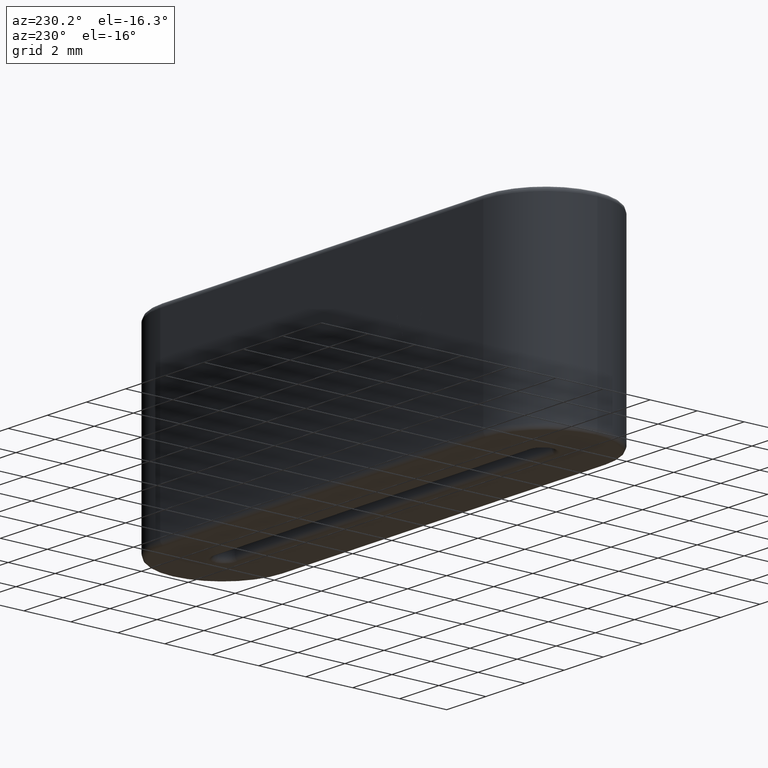
[diagram: clean part render]
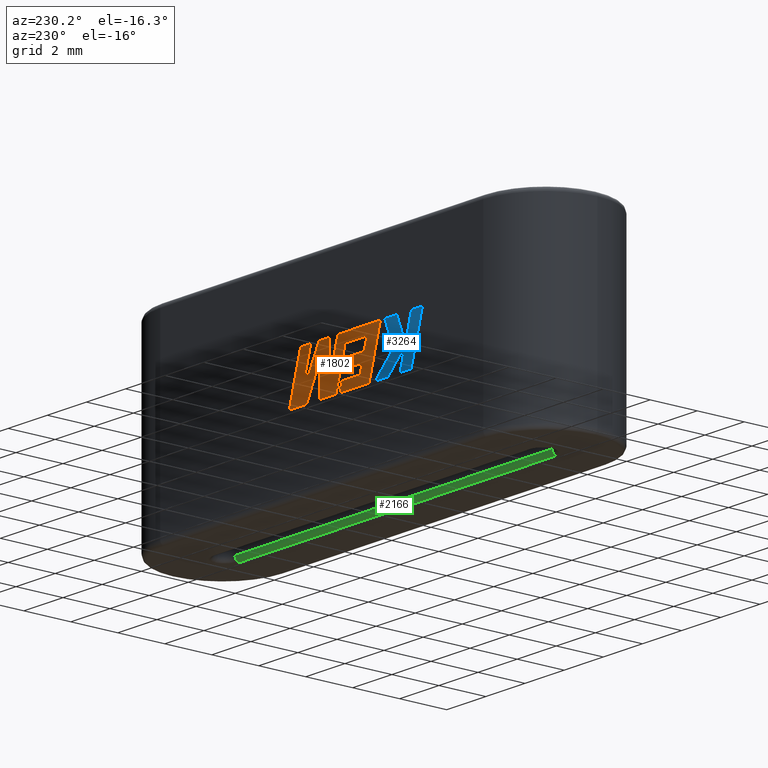
[diagram: same view with three faces highlighted in distinct colors, each labeled with its STEP entity id]
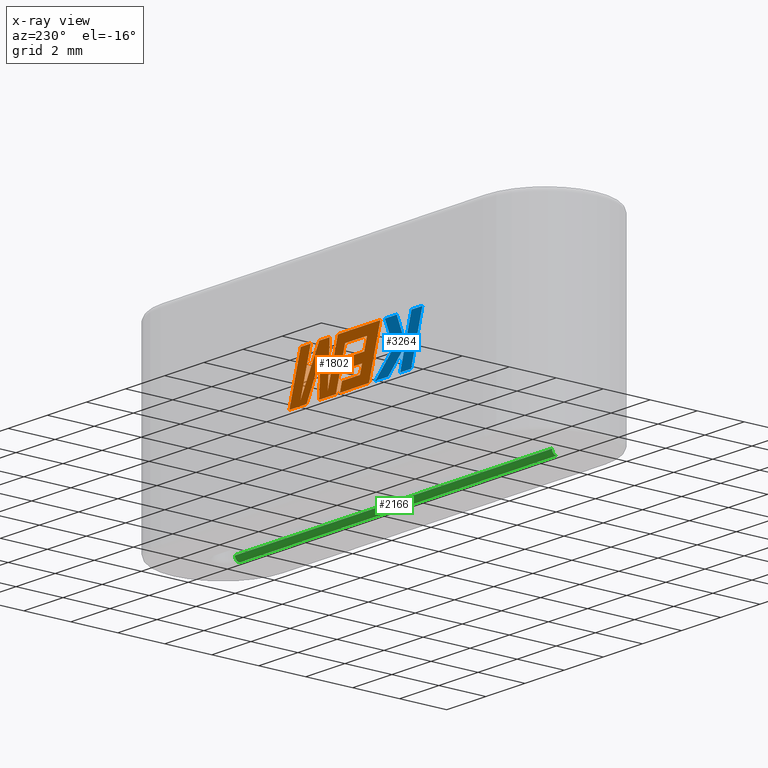
[diagram: x-ray of the same camera — body ghosted, the three highlighted faces saturated]
A machine part, auxiliary view with three faces highlighted in distinct colors.
The next image is the same camera in x-ray (body ghosted, the three faces saturated) — at least one of them is partly hidden behind the body in this view.
Their STEP definitions:

[orange] entity #1802 — the highlighted planar face has unit normal (0, -1, -0).
#22 = ORIENTED_EDGE ( 'NONE', *, *, #3053, .T. ) ;
#26 = DIRECTION ( 'NONE',  ( -1.000000000000000000, 0.000000000000000000, 0.000000000000000000 ) ) ;
#62 = CARTESIAN_POINT ( 'NONE',  ( -1.193775860063664762, 2.651000000000000245, 4.774426007866965804 ) ) ;
#98 = LINE ( 'NONE', #1161, #3296 ) ;
#188 = ORIENTED_EDGE ( 'NONE', *, *, #2686, .T. ) ;
#209 = DIRECTION ( 'NONE',  ( 0.2746459304916903932, 0.000000000000000000, -0.9615454294334477847 ) ) ;
#275 = LINE ( 'NONE', #2424, #1798 ) ;
#328 = ORIENTED_EDGE ( 'NONE', *, *, #2399, .T. ) ;
#370 = CARTESIAN_POINT ( 'NONE',  ( -0.3078529677499121653, 2.651000000000000245, 3.363073565194044434 ) ) ;
#377 = CARTESIAN_POINT ( 'NONE',  ( -2.311418640967355831, 2.651000000000000245, 4.774426007866965804 ) ) ;
#378 = DIRECTION ( 'NONE',  ( 1.000000000000000000, 0.000000000000000000, 0.000000000000000000 ) ) ;
#393 = LINE ( 'NONE', #370, #637 ) ;
#414 = VECTOR ( 'NONE', #434, 1000.000000000000114 ) ;
#416 = CARTESIAN_POINT ( 'NONE',  ( 0.1340951906034595909, 2.651000000000000245, 3.141848782489869762 ) ) ;
#417 = CARTESIAN_POINT ( 'NONE',  ( -2.995243345693006543, 2.651000000000000245, 5.157999999999999474 ) ) ;
#418 = LINE ( 'NONE', #2496, #2919 ) ;
#424 = EDGE_CURVE ( 'NONE', #3056, #3183, #2498, .T. ) ;
#434 = DIRECTION ( 'NONE',  ( -0.2760118818968566035, 0.000000000000000000, 0.9611542233438687965 ) ) ;
#479 = VERTEX_POINT ( 'NONE', #1806 ) ;
#494 = ORIENTED_EDGE ( 'NONE', *, *, #1609, .T. ) ;
#544 = EDGE_CURVE ( 'NONE', #2938, #2544, #2582, .T. ) ;
#554 = PLANE ( 'NONE',  #2696 ) ;
#557 = ORIENTED_EDGE ( 'NONE', *, *, #3390, .T. ) ;
#570 = EDGE_LOOP ( 'NONE', ( #2140, #605, #2663, #2581, #1833, #762, #2521, #1435, #22, #328, #3034, #620, #2959, #2525, #2107, #188, #887, #494, #1413, #557, #2658, #3248, #2886 ) ) ;
#585 = DIRECTION ( 'NONE',  ( 1.000000000000000000, 0.000000000000000000, -4.783739767952913197E-16 ) ) ;
#590 = DIRECTION ( 'NONE',  ( 1.000000000000000000, 0.000000000000000000, 0.000000000000000000 ) ) ;
#605 = ORIENTED_EDGE ( 'NONE', *, *, #930, .T. ) ;
#610 = LINE ( 'NONE', #789, #796 ) ;
#613 = LINE ( 'NONE', #664, #2734 ) ;
#619 = CARTESIAN_POINT ( 'NONE',  ( 1.075545225216797629, 2.651000000000000245, 5.157999999999998586 ) ) ;
#620 = ORIENTED_EDGE ( 'NONE', *, *, #1507, .T. ) ;
#626 = VECTOR ( 'NONE', #1267, 1000.000000000000114 ) ;
#628 = DIRECTION ( 'NONE',  ( 1.000000000000000000, 0.000000000000000000, 0.000000000000000000 ) ) ;
#637 = VECTOR ( 'NONE', #906, 1000.000000000000227 ) ;
#639 = LINE ( 'NONE', #619, #1776 ) ;
#664 = CARTESIAN_POINT ( 'NONE',  ( 0.05655977996424615267, 2.651000000000000245, 4.582213116643991668 ) ) ;
#678 = CARTESIAN_POINT ( 'NONE',  ( -1.953187383102237273, 2.651000000000000245, 3.525612814474558210 ) ) ;
#722 = LINE ( 'NONE', #2077, #2353 ) ;
#751 = LINE ( 'NONE', #1807, #2791 ) ;
#762 = ORIENTED_EDGE ( 'NONE', *, *, #3407, .T. ) ;
#768 = CARTESIAN_POINT ( 'NONE',  ( 1.655203566271572058, 2.651000000000000245, 3.141848782489869762 ) ) ;
#789 = CARTESIAN_POINT ( 'NONE',  ( -2.311418640967355831, 2.651000000000000245, 4.774426007866965804 ) ) ;
#790 = CARTESIAN_POINT ( 'NONE',  ( -2.415076186631972988, 2.651000000000000245, 3.141848782489869762 ) ) ;
#795 = LINE ( 'NONE', #1817, #1220 ) ;
#796 = VECTOR ( 'NONE', #2758, 1000.000000000000114 ) ;
#887 = ORIENTED_EDGE ( 'NONE', *, *, #2208, .T. ) ;
#906 = DIRECTION ( 'NONE',  ( -0.05596501978069183536, 0.000000000000000000, 0.9984327301130240251 ) ) ;
#930 = EDGE_CURVE ( 'NONE', #2433, #3085, #2997, .T. ) ;
#962 = VECTOR ( 'NONE', #628, 1000.000000000000000 ) ;
#973 = VERTEX_POINT ( 'NONE', #1108 ) ;
#992 = CARTESIAN_POINT ( 'NONE',  ( -1.193775860063664762, 2.651000000000000245, 4.774426007866965804 ) ) ;
#1003 = EDGE_CURVE ( 'NONE', #1088, #1804, #610, .T. ) ;
#1015 = VECTOR ( 'NONE', #2719, 1000.000000000000114 ) ;
#1083 = VERTEX_POINT ( 'NONE', #2274 ) ;
#1088 = VERTEX_POINT ( 'NONE', #377 ) ;
#1100 = VERTEX_POINT ( 'NONE', #416 ) ;
#1108 = CARTESIAN_POINT ( 'NONE',  ( -0.9256112330473496019, 2.651000000000000245, 3.141848782489869762 ) ) ;
#1119 = LINE ( 'NONE', #2490, #2839 ) ;
#1127 = DIRECTION ( 'NONE',  ( -1.000000000000000000, 0.000000000000000000, 0.000000000000000000 ) ) ;
#1153 = VERTEX_POINT ( 'NONE', #3186 ) ;
#1161 = CARTESIAN_POINT ( 'NONE',  ( 0.1290241386763800457, 2.651000000000000245, 5.157999999999998586 ) ) ;
#1189 = CARTESIAN_POINT ( 'NONE',  ( -2.168643536653550807, 2.651000000000000245, 4.273333821249929443 ) ) ;
#1220 = VECTOR ( 'NONE', #2674, 1000.000000000000227 ) ;
#1267 = DIRECTION ( 'NONE',  ( -0.2762517575166429373, 0.000000000000000000, 0.9610853065513830229 ) ) ;
#1344 = VERTEX_POINT ( 'NONE', #3040 ) ;
#1346 = LINE ( 'NONE', #2157, #1015 ) ;
#1347 = VECTOR ( 'NONE', #209, 1000.000000000000227 ) ;
#1376 = CARTESIAN_POINT ( 'NONE',  ( -0.01297471066781172300, 2.651000000000000245, -1.857415295886749362 ) ) ;
#1391 = EDGE_CURVE ( 'NONE', #3335, #973, #1346, .T. ) ;
#1413 = ORIENTED_EDGE ( 'NONE', *, *, #3405, .T. ) ;
#1415 = LINE ( 'NONE', #2457, #2008 ) ;
#1435 = ORIENTED_EDGE ( 'NONE', *, *, #1519, .T. ) ;
#1507 = EDGE_CURVE ( 'NONE', #1153, #3335, #3295, .T. ) ;
#1514 = LINE ( 'NONE', #1547, #1347 ) ;
#1518 = VECTOR ( 'NONE', #2311, 1000.000000000000000 ) ;
#1519 = EDGE_CURVE ( 'NONE', #1804, #2996, #418, .T. ) ;
#1547 = CARTESIAN_POINT ( 'NONE',  ( -1.303410465705907129, 2.651000000000000245, 4.273333821249929443 ) ) ;
#1609 = EDGE_CURVE ( 'NONE', #2209, #2954, #393, .T. ) ;
#1654 = CARTESIAN_POINT ( 'NONE',  ( -2.995243345693006543, 2.651000000000000245, 5.157999999999999474 ) ) ;
#1695 = DIRECTION ( 'NONE',  ( 0.05375259206908547527, 0.000000000000000000, -0.9985542843760946141 ) ) ;
#1760 = EDGE_CURVE ( 'NONE', #1100, #2938, #275, .T. ) ;
#1776 = VECTOR ( 'NONE', #2746, 1000.000000000000227 ) ;
#1798 = VECTOR ( 'NONE', #26, 1000.000000000000000 ) ;
#1802 = ADVANCED_FACE ( 'NONE', ( #2942 ), #554, .F. ) ;
#1804 = VERTEX_POINT ( 'NONE', #1189 ) ;
#1806 = CARTESIAN_POINT ( 'NONE',  ( 1.075545225216797629, 2.651000000000000245, 5.157999999999998586 ) ) ;
#1807 = CARTESIAN_POINT ( 'NONE',  ( -2.415076186631972988, 2.651000000000000245, 3.141848782489869762 ) ) ;
#1817 = CARTESIAN_POINT ( 'NONE',  ( -2.062307042045225636, 2.651000000000000245, 3.900616622153747937 ) ) ;
#1833 = ORIENTED_EDGE ( 'NONE', *, *, #544, .T. ) ;
#1897 = VECTOR ( 'NONE', #585, 1000.000000000000000 ) ;
#1902 = LINE ( 'NONE', #417, #1897 ) ;
#1921 = EDGE_CURVE ( 'NONE', #1083, #2433, #2552, .T. ) ;
#1935 = CARTESIAN_POINT ( 'NONE',  ( -1.034608285632153901, 2.651000000000000245, 3.525612814474558210 ) ) ;
#1943 = CARTESIAN_POINT ( 'NONE',  ( 0.7709333546737539011, 2.651000000000000245, 3.141848782489869762 ) ) ;
#1985 = VERTEX_POINT ( 'NONE', #2323 ) ;
#2008 = VECTOR ( 'NONE', #2192, 1000.000000000000000 ) ;
#2057 = LINE ( 'NONE', #3355, #1518 ) ;
#2077 = CARTESIAN_POINT ( 'NONE',  ( -0.8232287951173768992, 2.651000000000000245, 5.157999999999998586 ) ) ;
#2107 = ORIENTED_EDGE ( 'NONE', *, *, #3164, .T. ) ;
#2140 = ORIENTED_EDGE ( 'NONE', *, *, #1921, .T. ) ;
#2157 = CARTESIAN_POINT ( 'NONE',  ( -1.034608285632153901, 2.651000000000000245, 3.525612814474558210 ) ) ;
#2167 = EDGE_CURVE ( 'NONE', #973, #2592, #2057, .T. ) ;
#2184 = DIRECTION ( 'NONE',  ( -1.000000000000000000, 0.000000000000000000, 0.000000000000000000 ) ) ;
#2192 = DIRECTION ( 'NONE',  ( 1.000000000000000000, 0.000000000000000000, 0.000000000000000000 ) ) ;
#2208 = EDGE_CURVE ( 'NONE', #1344, #2209, #722, .T. ) ;
#2209 = VERTEX_POINT ( 'NONE', #2269 ) ;
#2221 = LINE ( 'NONE', #62, #2234 ) ;
#2234 = VECTOR ( 'NONE', #1127, 1000.000000000000000 ) ;
#2236 = LINE ( 'NONE', #3038, #2509 ) ;
#2269 = CARTESIAN_POINT ( 'NONE',  ( -0.3078529677499121653, 2.651000000000000245, 3.363073565194044434 ) ) ;
#2274 = CARTESIAN_POINT ( 'NONE',  ( 1.655203566271572058, 2.651000000000000245, 3.141848782489869762 ) ) ;
#2282 = EDGE_CURVE ( 'NONE', #3169, #1153, #795, .T. ) ;
#2311 = DIRECTION ( 'NONE',  ( -1.000000000000000000, 0.000000000000000000, 0.000000000000000000 ) ) ;
#2323 = CARTESIAN_POINT ( 'NONE',  ( -1.196951364739307744, 2.651000000000000245, 3.900616622153747937 ) ) ;
#2335 = CARTESIAN_POINT ( 'NONE',  ( 0.05655977996424615267, 2.651000000000000245, 4.582213116643991668 ) ) ;
#2353 = VECTOR ( 'NONE', #3147, 1000.000000000000114 ) ;
#2399 = EDGE_CURVE ( 'NONE', #1985, #3169, #1119, .T. ) ;
#2409 = CARTESIAN_POINT ( 'NONE',  ( 0.5632100355372096079, 2.651000000000000245, 5.157999999999998586 ) ) ;
#2424 = CARTESIAN_POINT ( 'NONE',  ( 0.1340951906034595909, 2.651000000000000245, 3.141848782489869762 ) ) ;
#2429 = EDGE_CURVE ( 'NONE', #479, #1083, #639, .T. ) ;
#2433 = VERTEX_POINT ( 'NONE', #1943 ) ;
#2440 = DIRECTION ( 'NONE',  ( 0.000000000000000000, 0.000000000000000000, -1.000000000000000000 ) ) ;
#2457 = CARTESIAN_POINT ( 'NONE',  ( -0.4084637454208629448, 2.651000000000000245, 5.157999999999998586 ) ) ;
#2469 = EDGE_CURVE ( 'NONE', #3183, #479, #2236, .T. ) ;
#2490 = CARTESIAN_POINT ( 'NONE',  ( -1.196951364739307744, 2.651000000000000245, 3.900616622153747937 ) ) ;
#2496 = CARTESIAN_POINT ( 'NONE',  ( -2.168643536653550807, 2.651000000000000245, 4.273333821249929443 ) ) ;
#2498 = LINE ( 'NONE', #2825, #414 ) ;
#2509 = VECTOR ( 'NONE', #590, 1000.000000000000000 ) ;
#2512 = CARTESIAN_POINT ( 'NONE',  ( -0.4084637454208629448, 2.651000000000000245, 5.157999999999998586 ) ) ;
#2520 = VERTEX_POINT ( 'NONE', #2866 ) ;
#2521 = ORIENTED_EDGE ( 'NONE', *, *, #1003, .T. ) ;
#2525 = ORIENTED_EDGE ( 'NONE', *, *, #2167, .T. ) ;
#2533 = VECTOR ( 'NONE', #3101, 1000.000000000000000 ) ;
#2544 = VERTEX_POINT ( 'NONE', #992 ) ;
#2549 = CARTESIAN_POINT ( 'NONE',  ( 1.081136075157814513, 2.651000000000000245, 3.354429816933985453 ) ) ;
#2552 = LINE ( 'NONE', #768, #2533 ) ;
#2581 = ORIENTED_EDGE ( 'NONE', *, *, #1760, .T. ) ;
#2582 = LINE ( 'NONE', #3110, #626 ) ;
#2592 = VERTEX_POINT ( 'NONE', #790 ) ;
#2656 = CARTESIAN_POINT ( 'NONE',  ( 0.7709333546737539011, 2.651000000000000245, 3.141848782489869762 ) ) ;
#2658 = ORIENTED_EDGE ( 'NONE', *, *, #424, .T. ) ;
#2663 = ORIENTED_EDGE ( 'NONE', *, *, #2895, .T. ) ;
#2674 = DIRECTION ( 'NONE',  ( 0.2793947940878294123, 0.000000000000000000, -0.9601763114327593884 ) ) ;
#2686 = EDGE_CURVE ( 'NONE', #3375, #1344, #1902, .T. ) ;
#2696 = AXIS2_PLACEMENT_3D ( 'NONE', #1376, #2958, #2440 ) ;
#2719 = DIRECTION ( 'NONE',  ( 0.2732148821746273604, 0.000000000000000000, -0.9619530280415486967 ) ) ;
#2734 = VECTOR ( 'NONE', #1695, 1000.000000000000000 ) ;
#2746 = DIRECTION ( 'NONE',  ( 0.2763139702539114673, 0.000000000000000000, -0.9610674221107072812 ) ) ;
#2758 = DIRECTION ( 'NONE',  ( 0.2740217765954066076, 0.000000000000000000, -0.9617234872620595842 ) ) ;
#2791 = VECTOR ( 'NONE', #2876, 1000.000000000000000 ) ;
#2825 = CARTESIAN_POINT ( 'NONE',  ( 1.081136075157814513, 2.651000000000000245, 3.354429816933985453 ) ) ;
#2839 = VECTOR ( 'NONE', #2184, 1000.000000000000000 ) ;
#2866 = CARTESIAN_POINT ( 'NONE',  ( 0.1290241386763800457, 2.651000000000000245, 5.157999999999998586 ) ) ;
#2876 = DIRECTION ( 'NONE',  ( -0.2765379750249956081, 0.000000000000000000, 0.9610029908221279227 ) ) ;
#2886 = ORIENTED_EDGE ( 'NONE', *, *, #2429, .T. ) ;
#2895 = EDGE_CURVE ( 'NONE', #3085, #1100, #613, .T. ) ;
#2919 = VECTOR ( 'NONE', #378, 1000.000000000000000 ) ;
#2938 = VERTEX_POINT ( 'NONE', #3298 ) ;
#2942 = FACE_OUTER_BOUND ( 'NONE', #570, .T. ) ;
#2954 = VERTEX_POINT ( 'NONE', #2512 ) ;
#2958 = DIRECTION ( 'NONE',  ( 0.000000000000000000, -1.000000000000000000, -0.000000000000000000 ) ) ;
#2959 = ORIENTED_EDGE ( 'NONE', *, *, #1391, .T. ) ;
#2996 = VERTEX_POINT ( 'NONE', #3050 ) ;
#2997 = LINE ( 'NONE', #2656, #3354 ) ;
#3034 = ORIENTED_EDGE ( 'NONE', *, *, #2282, .T. ) ;
#3038 = CARTESIAN_POINT ( 'NONE',  ( 0.5632100355372096079, 2.651000000000000245, 5.157999999999998586 ) ) ;
#3040 = CARTESIAN_POINT ( 'NONE',  ( -0.8232287951173768992, 2.651000000000000245, 5.157999999999998586 ) ) ;
#3050 = CARTESIAN_POINT ( 'NONE',  ( -1.303410465705907129, 2.651000000000000245, 4.273333821249929443 ) ) ;
#3053 = EDGE_CURVE ( 'NONE', #2996, #1985, #1514, .T. ) ;
#3056 = VERTEX_POINT ( 'NONE', #2549 ) ;
#3085 = VERTEX_POINT ( 'NONE', #2335 ) ;
#3101 = DIRECTION ( 'NONE',  ( -1.000000000000000000, 0.000000000000000000, 0.000000000000000000 ) ) ;
#3110 = CARTESIAN_POINT ( 'NONE',  ( -0.7245122840650081164, 2.651000000000000245, 3.141848782489869762 ) ) ;
#3147 = DIRECTION ( 'NONE',  ( 0.2759782365590623399, 0.000000000000000000, -0.9611638845408987386 ) ) ;
#3164 = EDGE_CURVE ( 'NONE', #2592, #3375, #751, .T. ) ;
#3169 = VERTEX_POINT ( 'NONE', #3224 ) ;
#3183 = VERTEX_POINT ( 'NONE', #2409 ) ;
#3186 = CARTESIAN_POINT ( 'NONE',  ( -1.953187383102237273, 2.651000000000000245, 3.525612814474558210 ) ) ;
#3224 = CARTESIAN_POINT ( 'NONE',  ( -2.062307042045225636, 2.651000000000000245, 3.900616622153747937 ) ) ;
#3248 = ORIENTED_EDGE ( 'NONE', *, *, #2469, .T. ) ;
#3295 = LINE ( 'NONE', #678, #962 ) ;
#3296 = VECTOR ( 'NONE', #3311, 1000.000000000000000 ) ;
#3298 = CARTESIAN_POINT ( 'NONE',  ( -0.7245122840650081164, 2.651000000000000245, 3.141848782489869762 ) ) ;
#3311 = DIRECTION ( 'NONE',  ( 0.4668459304955220324, 0.000000000000000000, -0.8843386665637605892 ) ) ;
#3335 = VERTEX_POINT ( 'NONE', #1935 ) ;
#3354 = VECTOR ( 'NONE', #3423, 1000.000000000000000 ) ;
#3355 = CARTESIAN_POINT ( 'NONE',  ( -0.9256112330473496019, 2.651000000000000245, 3.141848782489869762 ) ) ;
#3375 = VERTEX_POINT ( 'NONE', #1654 ) ;
#3390 = EDGE_CURVE ( 'NONE', #2520, #3056, #98, .T. ) ;
#3405 = EDGE_CURVE ( 'NONE', #2954, #2520, #1415, .T. ) ;
#3407 = EDGE_CURVE ( 'NONE', #2544, #1088, #2221, .T. ) ;
#3423 = DIRECTION ( 'NONE',  ( -0.4443210308329521019, 0.000000000000000000, 0.8958676361826800605 ) ) ;

[blue] entity #3264 — the highlighted planar face has unit normal (0, -1, 0).
#57 = EDGE_CURVE ( 'NONE', #2449, #2055, #912, .T. ) ;
#69 = LINE ( 'NONE', #2720, #1469 ) ;
#105 = DIRECTION ( 'NONE',  ( 1.000000000000000000, -0.000000000000000000, -0.000000000000000000 ) ) ;
#120 = DIRECTION ( 'NONE',  ( -0.2762033010251992993, -0.000000000000000000, 0.9610992334315864305 ) ) ;
#159 = EDGE_CURVE ( 'NONE', #2777, #780, #2917, .T. ) ;
#195 = ORIENTED_EDGE ( 'NONE', *, *, #3149, .T. ) ;
#226 = CARTESIAN_POINT ( 'NONE',  ( -4.006638603477679084, 2.651000000000000245, 3.141848782489869762 ) ) ;
#270 = CARTESIAN_POINT ( 'NONE',  ( -4.586811892856636597, 2.651000000000000245, 5.157999999999999474 ) ) ;
#274 = CARTESIAN_POINT ( 'NONE',  ( -4.253089644422276550, 2.651000000000000245, 4.001613609845972697 ) ) ;
#279 = DIRECTION ( 'NONE',  ( 0.000000000000000000, -0.000000000000000000, -1.000000000000000000 ) ) ;
#324 = EDGE_CURVE ( 'NONE', #1648, #1881, #69, .T. ) ;
#384 = VERTEX_POINT ( 'NONE', #1769 ) ;
#396 = LINE ( 'NONE', #2532, #2621 ) ;
#451 = LINE ( 'NONE', #226, #846 ) ;
#514 = EDGE_CURVE ( 'NONE', #780, #1648, #3415, .T. ) ;
#525 = VECTOR ( 'NONE', #2559, 1000.000000000000227 ) ;
#532 = VECTOR ( 'NONE', #120, 1000.000000000000227 ) ;
#533 = LINE ( 'NONE', #270, #2742 ) ;
#665 = EDGE_CURVE ( 'NONE', #2023, #1389, #827, .T. ) ;
#691 = EDGE_CURVE ( 'NONE', #2055, #1429, #533, .T. ) ;
#730 = DIRECTION ( 'NONE',  ( 1.000000000000000000, -0.000000000000000000, -0.000000000000000000 ) ) ;
#780 = VERTEX_POINT ( 'NONE', #1974 ) ;
#827 = LINE ( 'NONE', #1085, #2635 ) ;
#835 = CARTESIAN_POINT ( 'NONE',  ( -0.01297471066781172300, 2.651000000000000245, -1.857415295886749362 ) ) ;
#846 = VECTOR ( 'NONE', #1286, 1000.000000000000114 ) ;
#912 = LINE ( 'NONE', #3065, #532 ) ;
#929 = DIRECTION ( 'NONE',  ( 0.7145695586382846409, -0.000000000000000000, -0.6995643972269365296 ) ) ;
#963 = ORIENTED_EDGE ( 'NONE', *, *, #691, .T. ) ;
#979 = LINE ( 'NONE', #1723, #1421 ) ;
#1085 = CARTESIAN_POINT ( 'NONE',  ( -3.396242848381597401, 2.651000000000000245, 3.141848782489869762 ) ) ;
#1096 = CARTESIAN_POINT ( 'NONE',  ( -3.396242848381597401, 2.651000000000000245, 3.141848782489869762 ) ) ;
#1131 = EDGE_CURVE ( 'NONE', #384, #2449, #2606, .T. ) ;
#1140 = CARTESIAN_POINT ( 'NONE',  ( -4.565593001979631360, 2.651000000000000245, 3.141848782489869762 ) ) ;
#1286 = DIRECTION ( 'NONE',  ( 0.2755520632520619961, -0.000000000000000000, -0.9612861490927305796 ) ) ;
#1302 = VERTEX_POINT ( 'NONE', #274 ) ;
#1364 = PLANE ( 'NONE',  #2118 ) ;
#1389 = VERTEX_POINT ( 'NONE', #1096 ) ;
#1421 = VECTOR ( 'NONE', #929, 1000.000000000000000 ) ;
#1429 = VERTEX_POINT ( 'NONE', #2100 ) ;
#1469 = VECTOR ( 'NONE', #2706, 1000.000000000000114 ) ;
#1492 = CARTESIAN_POINT ( 'NONE',  ( -4.273043830859140968, 2.651000000000000245, 4.063284608109522189 ) ) ;
#1530 = ORIENTED_EDGE ( 'NONE', *, *, #1131, .T. ) ;
#1604 = FACE_OUTER_BOUND ( 'NONE', #2202, .T. ) ;
#1648 = VERTEX_POINT ( 'NONE', #3130 ) ;
#1658 = DIRECTION ( 'NONE',  ( -0.7059037656364500757, -0.000000000000000000, 0.7083077534943972298 ) ) ;
#1669 = EDGE_CURVE ( 'NONE', #1429, #2777, #2578, .T. ) ;
#1723 = CARTESIAN_POINT ( 'NONE',  ( -2.732746279479899787, 2.651000000000000245, 3.141848782489869762 ) ) ;
#1769 = CARTESIAN_POINT ( 'NONE',  ( -4.006638603477679084, 2.651000000000000245, 3.141848782489869762 ) ) ;
#1783 = CARTESIAN_POINT ( 'NONE',  ( -4.565593001979631360, 2.651000000000000245, 3.141848782489869762 ) ) ;
#1809 = DIRECTION ( 'NONE',  ( 0.3725077383643800588, -0.000000000000000000, 0.9280290862137104968 ) ) ;
#1867 = EDGE_CURVE ( 'NONE', #1881, #2023, #979, .T. ) ;
#1881 = VERTEX_POINT ( 'NONE', #2237 ) ;
#1888 = ORIENTED_EDGE ( 'NONE', *, *, #324, .T. ) ;
#1896 = ORIENTED_EDGE ( 'NONE', *, *, #665, .T. ) ;
#1914 = ORIENTED_EDGE ( 'NONE', *, *, #1669, .T. ) ;
#1974 = CARTESIAN_POINT ( 'NONE',  ( -3.833628772814408503, 2.651000000000000245, 5.157999999999999474 ) ) ;
#2023 = VERTEX_POINT ( 'NONE', #2065 ) ;
#2055 = VERTEX_POINT ( 'NONE', #3418 ) ;
#2065 = CARTESIAN_POINT ( 'NONE',  ( -2.732746279479899787, 2.651000000000000245, 3.141848782489869762 ) ) ;
#2094 = DIRECTION ( 'NONE',  ( -1.000000000000000000, -0.000000000000000000, -0.000000000000000000 ) ) ;
#2100 = CARTESIAN_POINT ( 'NONE',  ( -4.586811892856636597, 2.651000000000000245, 5.157999999999999474 ) ) ;
#2118 = AXIS2_PLACEMENT_3D ( 'NONE', #835, #2628, #279 ) ;
#2124 = CARTESIAN_POINT ( 'NONE',  ( -3.833628772814408503, 2.651000000000000245, 5.157999999999999474 ) ) ;
#2202 = EDGE_LOOP ( 'NONE', ( #3094, #963, #1914, #3225, #2288, #1888, #3023, #1896, #3441, #195, #1530 ) ) ;
#2237 = CARTESIAN_POINT ( 'NONE',  ( -3.673946251686225573, 2.651000000000000245, 4.063284608109507090 ) ) ;
#2288 = ORIENTED_EDGE ( 'NONE', *, *, #514, .T. ) ;
#2393 = CARTESIAN_POINT ( 'NONE',  ( -4.273043830859140968, 2.651000000000000245, 4.063284608109522189 ) ) ;
#2416 = VECTOR ( 'NONE', #2094, 1000.000000000000000 ) ;
#2449 = VERTEX_POINT ( 'NONE', #1140 ) ;
#2532 = CARTESIAN_POINT ( 'NONE',  ( -4.253089644422276550, 2.651000000000000245, 4.001613609845972697 ) ) ;
#2559 = DIRECTION ( 'NONE',  ( 0.2755265765474870787, -0.000000000000000000, -0.9612934544747621102 ) ) ;
#2578 = LINE ( 'NONE', #1492, #525 ) ;
#2606 = LINE ( 'NONE', #1783, #2416 ) ;
#2621 = VECTOR ( 'NONE', #1658, 1000.000000000000114 ) ;
#2628 = DIRECTION ( 'NONE',  ( 0.000000000000000000, -1.000000000000000000, 0.000000000000000000 ) ) ;
#2635 = VECTOR ( 'NONE', #3403, 1000.000000000000000 ) ;
#2649 = VECTOR ( 'NONE', #1809, 1000.000000000000114 ) ;
#2706 = DIRECTION ( 'NONE',  ( -0.3829140317376587554, -0.000000000000000000, -0.9237839814038839581 ) ) ;
#2720 = CARTESIAN_POINT ( 'NONE',  ( -3.673946251686225573, 2.651000000000000245, 4.063284608109507090 ) ) ;
#2742 = VECTOR ( 'NONE', #105, 1000.000000000000000 ) ;
#2777 = VERTEX_POINT ( 'NONE', #2393 ) ;
#2863 = VECTOR ( 'NONE', #730, 1000.000000000000000 ) ;
#2917 = LINE ( 'NONE', #2124, #2649 ) ;
#3003 = EDGE_CURVE ( 'NONE', #1389, #1302, #396, .T. ) ;
#3023 = ORIENTED_EDGE ( 'NONE', *, *, #1867, .T. ) ;
#3065 = CARTESIAN_POINT ( 'NONE',  ( -5.144999999999999574, 2.651000000000000245, 5.157999999999999474 ) ) ;
#3094 = ORIENTED_EDGE ( 'NONE', *, *, #57, .T. ) ;
#3130 = CARTESIAN_POINT ( 'NONE',  ( -3.220180119395184892, 2.651000000000000245, 5.157999999999999474 ) ) ;
#3149 = EDGE_CURVE ( 'NONE', #1302, #384, #451, .T. ) ;
#3225 = ORIENTED_EDGE ( 'NONE', *, *, #159, .T. ) ;
#3264 = ADVANCED_FACE ( 'NONE', ( #1604 ), #1364, .F. ) ;
#3394 = CARTESIAN_POINT ( 'NONE',  ( -3.220180119395184892, 2.651000000000000245, 5.157999999999999474 ) ) ;
#3403 = DIRECTION ( 'NONE',  ( -1.000000000000000000, -0.000000000000000000, -0.000000000000000000 ) ) ;
#3415 = LINE ( 'NONE', #3394, #2863 ) ;
#3418 = CARTESIAN_POINT ( 'NONE',  ( -5.144999999999999574, 2.651000000000000245, 5.157999999999999474 ) ) ;
#3441 = ORIENTED_EDGE ( 'NONE', *, *, #3003, .T. ) ;

[green] entity #2166 — the highlighted cylindrical surface (edge-blend (fillet) strip) has radius 0.2 mm, axis along (-1, 0, -0).
#15 = AXIS2_PLACEMENT_3D ( 'NONE', #3337, #2030, #1277 ) ;
#94 = CARTESIAN_POINT ( 'NONE',  ( 8.099999999999999645, -0.4000000000000000222, 0.2000000000000000111 ) ) ;
#164 = VECTOR ( 'NONE', #409, 1000.000000000000000 ) ;
#239 = DIRECTION ( 'NONE',  ( 0.000000000000000000, 0.000000000000000000, -1.000000000000000000 ) ) ;
#294 = DIRECTION ( 'NONE',  ( 1.000000000000000000, -0.000000000000000000, 0.000000000000000000 ) ) ;
#389 = CARTESIAN_POINT ( 'NONE',  ( 8.099999999999999645, -0.6000000000000000888, 0.000000000000000000 ) ) ;
#409 = DIRECTION ( 'NONE',  ( -1.000000000000000000, 0.000000000000000000, -0.000000000000000000 ) ) ;
#432 = EDGE_CURVE ( 'NONE', #3150, #3393, #1164, .T. ) ;
#471 = CIRCLE ( 'NONE', #2924, 0.2000000000000000111 ) ;
#819 = ORIENTED_EDGE ( 'NONE', *, *, #1034, .T. ) ;
#1034 = EDGE_CURVE ( 'NONE', #3150, #1971, #2685, .T. ) ;
#1164 = LINE ( 'NONE', #2609, #1423 ) ;
#1277 = DIRECTION ( 'NONE',  ( 0.000000000000000000, 0.000000000000000000, 1.000000000000000000 ) ) ;
#1306 = CARTESIAN_POINT ( 'NONE',  ( 8.099999999999999645, -0.6000000000000000888, 0.2000000000000000111 ) ) ;
#1423 = VECTOR ( 'NONE', #1546, 1000.000000000000000 ) ;
#1546 = DIRECTION ( 'NONE',  ( 1.000000000000000000, -0.000000000000000000, 0.000000000000000000 ) ) ;
#1735 = EDGE_CURVE ( 'NONE', #3393, #2082, #471, .T. ) ;
#1936 = DIRECTION ( 'NONE',  ( 1.000000000000000000, -0.000000000000000000, 0.000000000000000000 ) ) ;
#1940 = ORIENTED_EDGE ( 'NONE', *, *, #432, .F. ) ;
#1971 = VERTEX_POINT ( 'NONE', #3400 ) ;
#2030 = DIRECTION ( 'NONE',  ( -1.000000000000000000, 0.000000000000000000, -0.000000000000000000 ) ) ;
#2062 = AXIS2_PLACEMENT_3D ( 'NONE', #2394, #1936, #3452 ) ;
#2082 = VERTEX_POINT ( 'NONE', #94 ) ;
#2145 = ORIENTED_EDGE ( 'NONE', *, *, #2244, .F. ) ;
#2156 = EDGE_LOOP ( 'NONE', ( #819, #2145, #2732, #1940 ) ) ;
#2166 = ADVANCED_FACE ( 'NONE', ( #2713 ), #2505, .T. ) ;
#2244 = EDGE_CURVE ( 'NONE', #2082, #1971, #2326, .T. ) ;
#2326 = LINE ( 'NONE', #2603, #164 ) ;
#2394 = CARTESIAN_POINT ( 'NONE',  ( -8.100000000000001421, -0.6000000000000000888, 0.2000000000000000111 ) ) ;
#2505 = CYLINDRICAL_SURFACE ( 'NONE', #15, 0.2000000000000000111 ) ;
#2603 = CARTESIAN_POINT ( 'NONE',  ( -8.100000000000001421, -0.4000000000000000222, 0.2000000000000000111 ) ) ;
#2609 = CARTESIAN_POINT ( 'NONE',  ( 8.099999999999999645, -0.6000000000000000888, 0.000000000000000000 ) ) ;
#2685 = CIRCLE ( 'NONE', #2062, 0.2000000000000000111 ) ;
#2713 = FACE_OUTER_BOUND ( 'NONE', #2156, .T. ) ;
#2732 = ORIENTED_EDGE ( 'NONE', *, *, #1735, .F. ) ;
#2924 = AXIS2_PLACEMENT_3D ( 'NONE', #1306, #294, #239 ) ;
#3111 = CARTESIAN_POINT ( 'NONE',  ( -8.100000000000001421, -0.6000000000000000888, 0.000000000000000000 ) ) ;
#3150 = VERTEX_POINT ( 'NONE', #3111 ) ;
#3337 = CARTESIAN_POINT ( 'NONE',  ( -0.000000000000000000, -0.6000000000000000888, 0.2000000000000000111 ) ) ;
#3393 = VERTEX_POINT ( 'NONE', #389 ) ;
#3400 = CARTESIAN_POINT ( 'NONE',  ( -8.100000000000001421, -0.4000000000000000222, 0.2000000000000005107 ) ) ;
#3452 = DIRECTION ( 'NONE',  ( 0.000000000000000000, 0.000000000000000000, -1.000000000000000000 ) ) ;